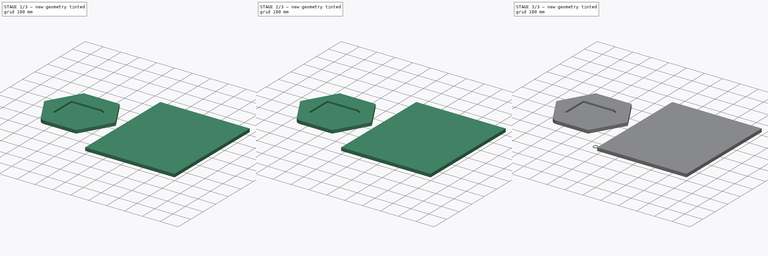
[diagram: build sequence overview — one tinted view per stage of 3, left to right]
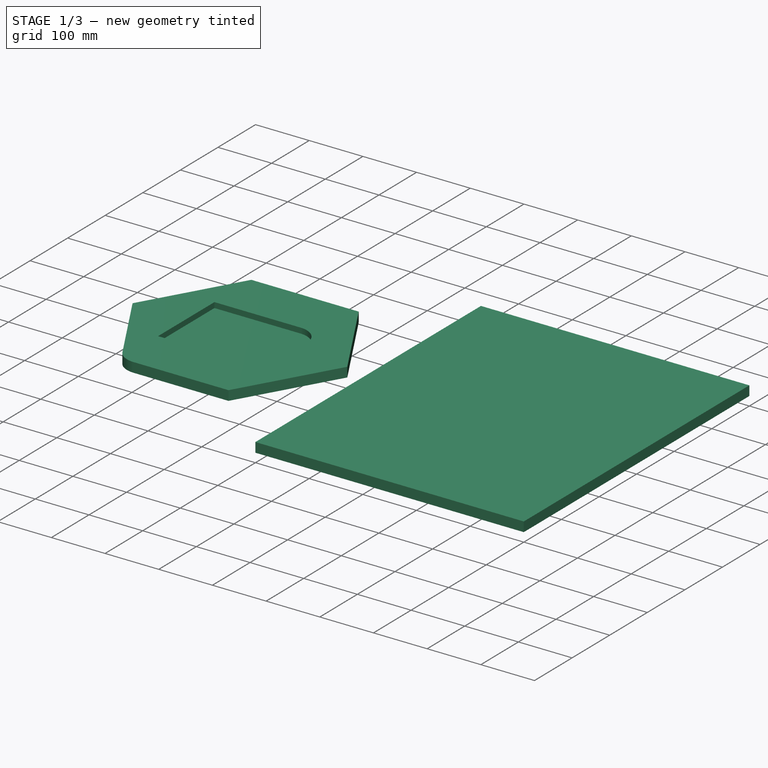
[diagram: stage 1 of 3 — iso view after this stage's code; geometry added in this stage tinted green]
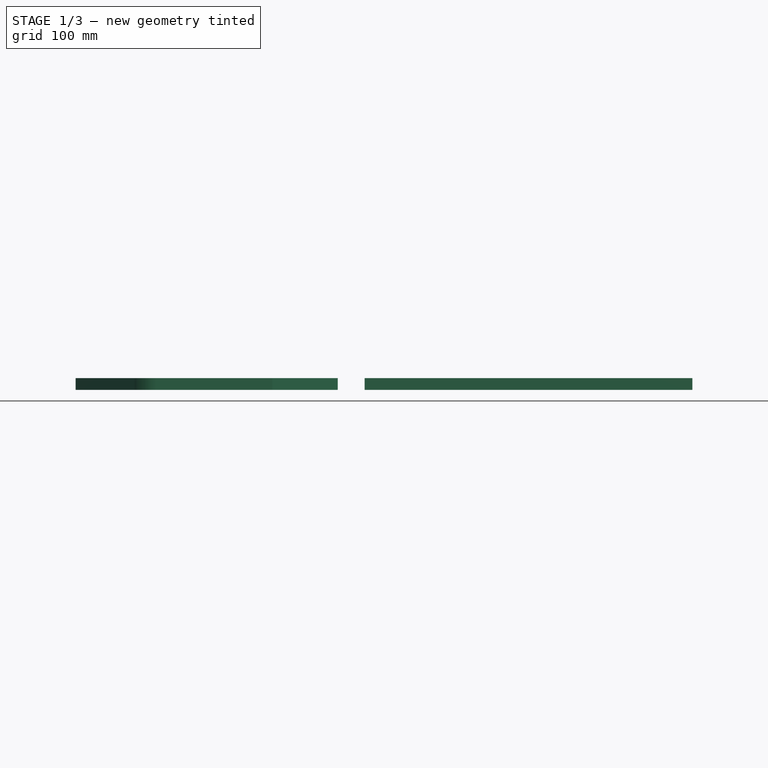
[diagram: stage 1 of 3 — front view after this stage's code; geometry added in this stage tinted green]
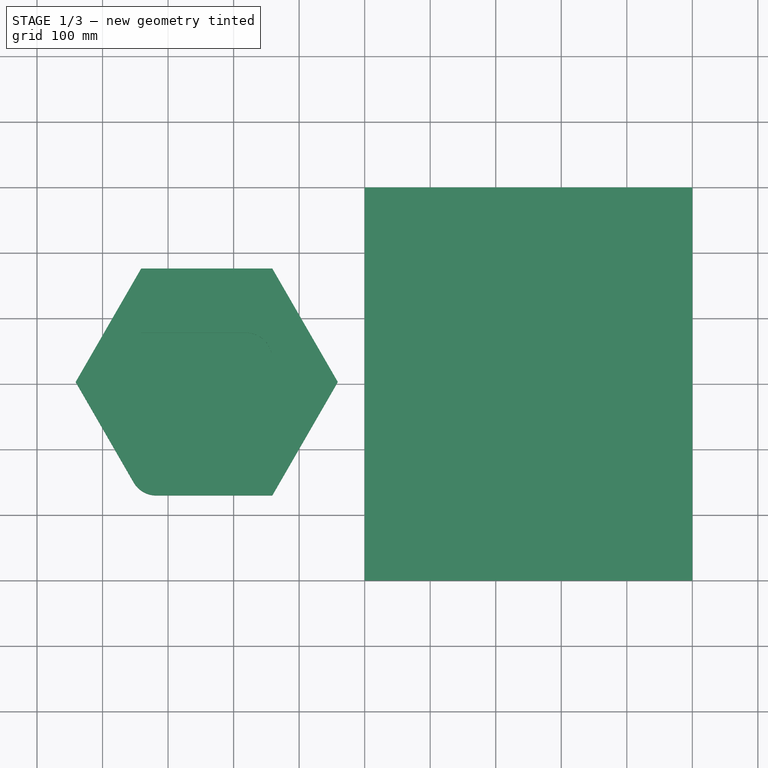
[diagram: stage 1 of 3 — top view after this stage's code; geometry added in this stage tinted green]
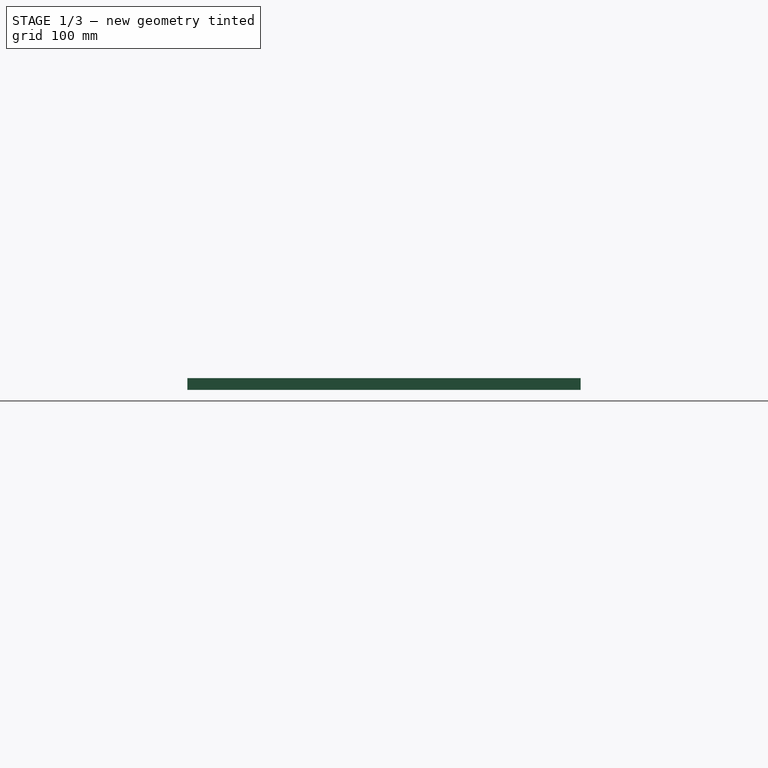
[diagram: stage 1 of 3 — right view after this stage's code; geometry added in this stage tinted green]
FCSTD DOCUMENT  (FreeCAD 0.18R16093 (Git))
Label: freecad-cnc-template
License: CreativeCommons Attribution-ShareAlike
LicenseURL: http://creativecommons.org/licenses/by-sa/4.0/
objects: Path::FeaturePython×17, Part::FeaturePython×4, Sketcher::SketchObject×2, PartDesign::Body×2, App::FeaturePython×2, Part::Feature×2, App::DocumentObjectGroup×2, Path::FeatureCompoundPython×2, Spreadsheet::Sheet×1, PartDesign::Pad×1
note: 14 computed .brp shape members not serialized (recipe doc carries the construction recipe); baked Part::Feature solids carry a one-line shape summary decoded from their .brp

FEATURE [Spreadsheet::Sheet] Spreadsheet  label="Material_setup"
  cells = B2=Material setup; B3=Material length (X); C3(matdim_x)=500; B4=Materlal width (Y); C4(matdim_y)=600; B5=Material thickness (Z); C5(matdim_z)=18; B6=Material type, or feedrate; C6(mattype)==wood; D6=type: foam, wood, plastic or alu; B9=Material position; B10=Offset X; C10(matoffset_x)=0; B11=Offset Y; C11(matoffset_y)=0; B13=Machine setup; B14=Bed width (X); C14(beddim_x)=2440; B15=Bed width (Y); C15(beddim_y)=1220; B16=Bed thickness (Y); C16(beddim_z)=30; B19=Material type; C19=Feedrates for 6mm bit; D19=Passdepth for 6mm bit; E19=Ramp angle; B20=Foam; C20(foam)=100; D20=18; E20=0; H20=bit; I20==Spreadsheet.mattype / 6 * 2 * 0.6; B21=Wood; C21(wood)=65; D21=16; E21=0; H21=stepdown; I21=Spreadsheet.passdepth / 6 * OpToolDiameter; B22=Plastic; C22(plastic)=30; D22=7; E22=72; H22=ramp angle; I22==Spreadsheet.rampangle; B23=Aluminium; C23(alu)=20; D23=1.8; E23=78; B24=Custom; D24=0.5; E24=45; B26=Current pass depth (dont change, only for reference); C26(passdepth)==C6 == C20 ? D20 : (C6 == C21 ? D21 : (C6 == C22 ? D22 : (C6 == C23 ? D23 : D24))); B27=Current ramp angle (dont change, only for reference); C27(rampangle)==C6 == C20 ? E20 : (C6 == C21 ? E21 : (C6 == C22 ? E22 : (C6 == C23 ? E23 : E24)))
FEATURE [Sketcher::SketchObject] Sketch
  MapMode = 5
  Support = -> [XY_Plane]
  expr: Constraints[10] = Material_setup.beddim_y
  expr: Constraints[9] = Material_setup.beddim_x
  sketch-geometry (4):
    g0: LineSegment StartX=0 StartY=0 StartZ=0 EndX=2440 EndY=0 EndZ=0
    g1: LineSegment StartX=2440 StartY=0 StartZ=0 EndX=2440 EndY=1220 EndZ=0
    g2: LineSegment StartX=2440 StartY=1220 StartZ=0 EndX=0 EndY=1220 EndZ=0
    g3: LineSegment StartX=0 StartY=1220 StartZ=0 EndX=0 EndY=0 EndZ=0
  constraints (11):
    c: Coincident(g0,g1)
    c: Coincident(g1,g2)
    c: Coincident(g2,g3)
    c: Coincident(g3,g0)
    c: Horizontal(g0)
    c: Horizontal(g2)
    c: Vertical(g1)
    c: Vertical(g3)
    c: Coincident(g0,g-1)
    c: DistanceX(g0,g0) = 2440
    c: DistanceY(g3,g3) = 1220
FEATURE [PartDesign::Body] Body  label="Machine_bed_reference"
  Group = -> [Sketch]
  Origin = -> Origin
FEATURE [Sketcher::SketchObject] Sketch001
  MapMode = 5
  Support = -> [XY_Plane001]
  expr: Constraints[11] = Spreadsheet.matdim_y
  expr: Constraints[10] = Spreadsheet.matdim_x
  expr: Constraints[9] = Spreadsheet.matoffset_y
  expr: Constraints[8] = Spreadsheet.matoffset_x
  sketch-geometry (4):
    g0: LineSegment StartX=0 StartY=0 StartZ=0 EndX=500 EndY=0 EndZ=0
    g1: LineSegment StartX=500 StartY=0 StartZ=0 EndX=500 EndY=600 EndZ=0
    g2: LineSegment StartX=500 StartY=600 StartZ=0 EndX=0 EndY=600 EndZ=0
    g3: LineSegment StartX=0 StartY=600 StartZ=0 EndX=0 EndY=0 EndZ=0
  constraints (12):
    c: Coincident(g0,g1)
    c: Coincident(g1,g2)
    c: Coincident(g2,g3)
    c: Coincident(g3,g0)
    c: Horizontal(g0)
    c: Horizontal(g2)
    c: Vertical(g1)
    c: Vertical(g3)
    c: DistanceX(g-1,g0) = 0
    c: DistanceY(g-1,g0) = 0
    c: DistanceX(g0,g0) = 500
    c: DistanceY(g1,g1) = 600
FEATURE [PartDesign::Pad] Pad001
  Length = 18
  Length2 = 100
  Profile = -> Sketch001
  Type = 0
  expr: Length = Spreadsheet.matdim_z
FEATURE [Part::Feature] hextest_001001  label="hextest_002"
  Placement = pos=(-241,303,0) rot=(0,0,1;0rad)
  shape: bbox 400 x 346.4 x 18 mm, 15 faces (baked)
FEATURE [Part::FeaturePython] Clone  label="Model-hextest_002"  # Draft clone (typed FeaturePython)
  AttacherType = Attacher::AttachEngine3D
  Fuse = false
  Objects = -> [hextest_001001]
  PathResource = Model
  Placement = pos=(-241,303,0) rot=(0,0,1;0rad)
  Scale = (1,1,1)
FEATURE [App::DocumentObjectGroup] Model
  Group = -> [Clone]
FEATURE [Path::FeaturePython] Pocket_Shape  # Path/CAM operation (typed FeaturePython)
  Active = true
  AreaParams:
    OpenMode = 0
    Angle = 45.0
    MinArcPoints = 4
    Coplanar = 0
    Tolerance = 1e-07
    CleanDistance = 0.0
    PocketExtraOffset = 0.0
    RoundPrecision = 0.0
    AngleShift = 0.0
    SubjectFill = 0
    PocketMode = 2
    PocketLastStepover = 0.0
    Simplify = False
    SectionTolerance = 1e-06
    MaxArcPoints = 100
    Offset = 0.0
    Accuracy = 0.01
    LastStepover = 0.0
    PocketStepover = 4.800000000000001
    ClipFill = 0
    ToolRadius = 3.0
    Outline = False
    ClipperScale = 10000000.0
    FromCenter = True
    Explode = False
    EndType = 0
    Shift = 0.0
    ExtraPass = 0
    Project = False
    JoinType = 0
    Thicken = False
    Stepdown = 1.0
    SectionMode = 2
    MiterLimit = 2.0
    Deflection = 0.01
    Reorient = True
    FitArcs = True
    SectionCount = -1
    SectionOffset = 0.0
    Stepover = 0.0
    Unit = 1.0
    Fill = 0
  Base = -> [Clone]
  ClearanceHeight = 23
  CutMode = 1
  ExtraOffset = 0
  FinalDepth = 8
  FinishDepth = 0
  KeepToolDown = true
  MinTravel = false
  OffsetPattern = 1
  OpFinalDepth = 8
  OpStartDepth = 18
  OpStockZMax = 18
  OpStockZMin = 0
  OpToolDiameter = 6
  PathParams = {'resume_height': 21.0, 'feedrate': 65.0, 'verbose': True, 'orientation': 0, 'return_end': True, 'threshold': 6.003, 'preamble': False, 'retraction': 23.0, 'feedrate_v': 39.0}
  SafeHeight = 21
  StartAt = 0
  StartDepth = 18
  StartPoint = (0,0,0)
  StepDown = 16
  StepOver = 80
  ToolController = -> T4__6mm_milling_bit001001
  UseOutline = false
  UseStartPoint = false
  ZigZagAngle = 45
  expr: ClearanceHeight = OpStockZMax + SetupSheet.ClearanceHeightOffset
  expr: SafeHeight = OpStockZMax + SetupSheet.SafeHeightOffset
  expr: StepDown = Spreadsheet.passdepth / 6 * OpToolDiameter
  expr: FinalDepth = OpFinalDepth
  expr: StartDepth = OpStartDepth
FEATURE [Path::FeaturePython] Contour  # Path/CAM operation (typed FeaturePython)
  Active = true
  AreaParams:
    OpenMode = 0
    Angle = 45.0
    MinArcPoints = 4
    Coplanar = 2
    Tolerance = 1e-07
    CleanDistance = 0.0
    PocketExtraOffset = 0.0
    RoundPrecision = 0.0
    AngleShift = 0.0
    SubjectFill = 0
    PocketMode = 0
    PocketLastStepover = 0.0
    Simplify = False
    SectionTolerance = 1e-06
    MaxArcPoints = 100
    Offset = 3.0
    Accuracy = 0.01
    LastStepover = 0.0
    PocketStepover = 0.0
    ClipFill = 0
    ToolRadius = 1.0
    Outline = False
    ClipperScale = 10000000.0
    FromCenter = False
    Explode = False
    EndType = 0
    Shift = 0.0
    ExtraPass = 0
    Project = False
    JoinType = 0
    Thicken = False
    Stepdown = 1.0
    SectionMode = 2
    MiterLimit = 2.0
    Deflection = 0.01
    Reorient = True
    FitArcs = True
    SectionCount = -1
    SectionOffset = 0.0
    Stepover = 0.0
    Unit = 1.0
    Fill = 0
  ClearanceHeight = 23
  Direction = 0
  FinalDepth = 0.6
  JoinType = 0
  MiterLimit = 0.1
  OffsetExtra = 0
  OpFinalDepth = 0
  OpStartDepth = 18
  OpStockZMax = 18
  OpStockZMin = 0
  OpToolDiameter = 6
  PathParams = {'resume_height': 21.0, 'feedrate': 65.0, 'verbose': True, 'orientation': 1, 'return_end': True, 'preamble': False, 'retraction': 23.0, 'feedrate_v': 39.0}
  SafeHeight = 21
  Side = 0
  StartDepth = 18
  StartPoint = (0,0,0)
  StepDown = 16
  ToolController = -> T4__6mm_milling_bit001001
  UseComp = true
  UseStartPoint = false
  expr: ClearanceHeight = OpStockZMax + SetupSheet.ClearanceHeightOffset
  expr: SafeHeight = OpStockZMax + SetupSheet.SafeHeightOffset
  expr: StepDown = Spreadsheet.passdepth / 6 * OpToolDiameter
  expr: FinalDepth = OpFinalDepth + 0.6mm
  expr: StartDepth = OpStartDepth
FEATURE [Path::FeaturePython] RampEntryDressup  label="RampEntryDressup-pocket"  # Path/CAM operation (typed FeaturePython)
  Angle = 0.1
  Base = -> Pocket_Shape
  CustomFeedRate = 0
  DressupStartDepth = 25
  Method = 0
  RampFeedRate = 0
  UseStartDepth = false
  expr: Angle = Material_setup.rampangle
FEATURE [Path::FeaturePython] RampEntryDressup001  label="RampEntryDressup-contour"  # Path/CAM operation (typed FeaturePython)
  Angle = 0.1
  Base = -> Contour
  CustomFeedRate = 0
  DressupStartDepth = 25
  Method = 0
  RampFeedRate = 0
  UseStartDepth = false
  expr: Angle = Material_setup.rampangle
FEATURE [Path::FeatureCompoundPython] Operations  # Path/CAM operation (typed FeaturePython)
  Group = -> [RampEntryDressup,RampEntryDressup001]
  UsePlacements = false
FEATURE [Path::FeaturePython] Job  label="Pockets_and_contours"  # Path/CAM operation (typed FeaturePython)
  GeometryTolerance = 0.01
  Model = -> Model
  Operations = -> Operations
  PostProcessor = 4
  SetupSheet = -> SetupSheet
  Stock = -> Clone014
  ToolController = -> [T1__2mm_milling_bit001001,T2__3mm_milling_bit001001,T3__4mm_milling_bit001001,T4__6mm_milling_bit001001,T5__8mm_milling_bit001001]
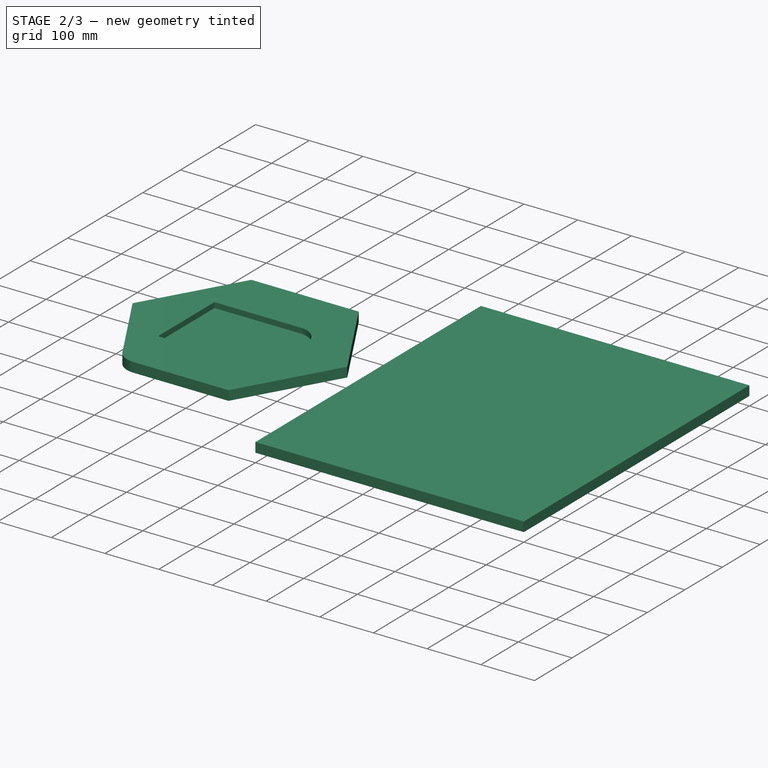
[diagram: stage 2 of 3 — iso view after this stage's code; geometry added in this stage tinted green]
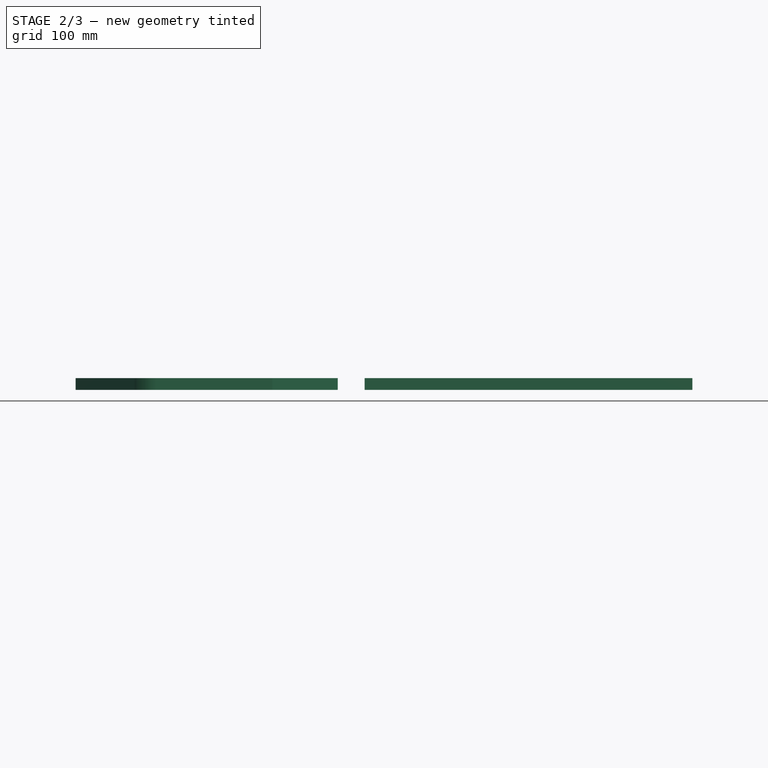
[diagram: stage 2 of 3 — front view after this stage's code; geometry added in this stage tinted green]
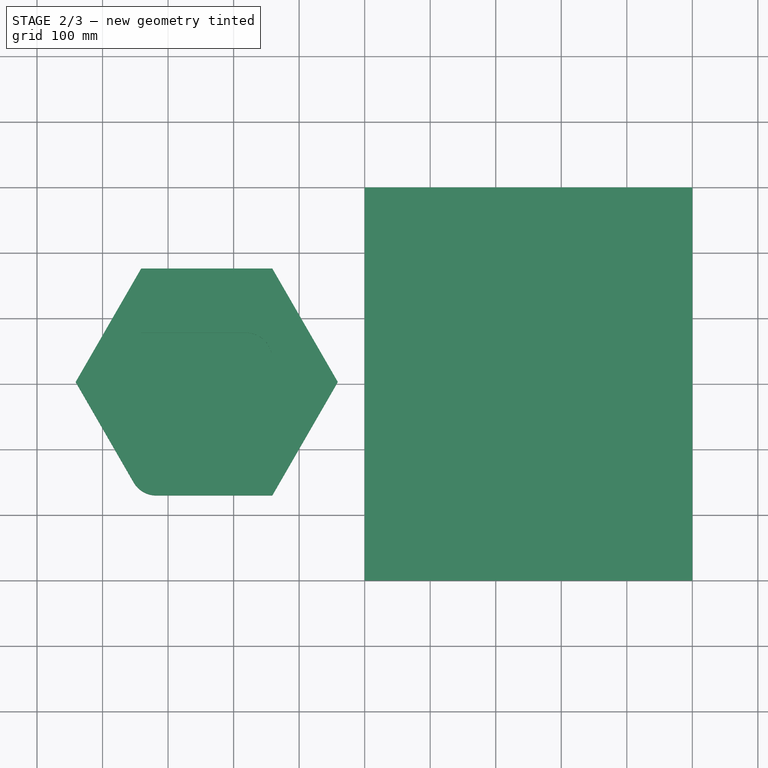
[diagram: stage 2 of 3 — top view after this stage's code; geometry added in this stage tinted green]
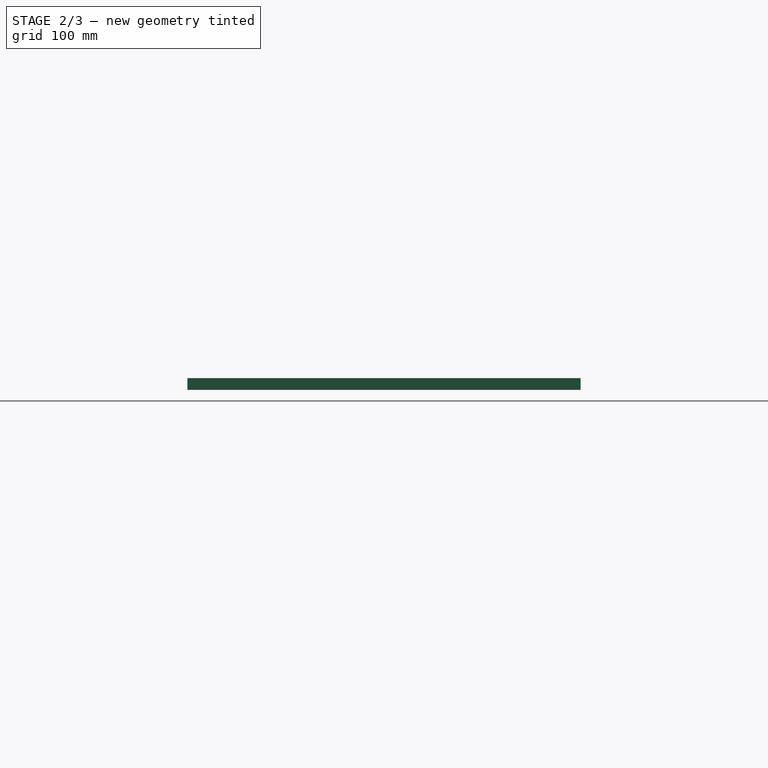
[diagram: stage 2 of 3 — right view after this stage's code; geometry added in this stage tinted green]
FEATURE [App::DocumentObjectGroup] Model001
  Group = -> [Clone013]
FEATURE [Path::FeaturePython] Drilling  # Path/CAM operation (typed FeaturePython)
  Active = true
  AddTipLength = false
  Base = -> [Clone013]
  ClearanceHeight = 23
  DwellEnabled = false
  DwellTime = 0
  FinalDepth = 0
  OpFinalDepth = 0
  OpStartDepth = 18
  OpStockZMax = 18
  OpStockZMin = 0
  OpToolDiameter = 6
  PeckDepth = 0
  PeckEnabled = false
  RetractHeight = 10
  ReturnLevel = 0
  SafeHeight = 21
  StartDepth = 18.6
  ToolController = -> T4__6mm_milling_bit001
  expr: ClearanceHeight = OpStockZMax + SetupSheet001.ClearanceHeightOffset
  expr: SafeHeight = OpStockZMax + SetupSheet001.SafeHeightOffset
  expr: FinalDepth = OpFinalDepth
  expr: StartDepth = OpStartDepth + 0.6mm
FEATURE [Path::FeatureCompoundPython] Operations001  # Path/CAM operation (typed FeaturePython)
  Group = -> [Drilling]
  UsePlacements = false
FEATURE [Path::FeaturePython] Job001  label="Hold_down_drill"  # Path/CAM operation (typed FeaturePython)
  GeometryTolerance = 0.01
  Model = -> Model001
  Operations = -> Operations001
  PostProcessor = 4
  SetupSheet = -> SetupSheet001
  Stock = -> Clone012
  ToolController = -> [T1__2mm_milling_bit001,T2__3mm_milling_bit001,T3__4mm_milling_bit001,T4__6mm_milling_bit001,T5__8mm_milling_bit001]
FEATURE [App::FeaturePython] SetupSheet  # Path/CAM operation (typed FeaturePython)
  ClearanceHeightExpression = OpStockZMax+SetupSheet.ClearanceHeightOffset
  ClearanceHeightOffset = 5
  FinalDepthExpression = OpFinalDepth
  HorizRapid = 250
  SafeHeightExpression = OpStockZMax+SetupSheet.SafeHeightOffset
  SafeHeightOffset = 3
  StartDepthExpression = OpStartDepth
  StepDownExpression = Spreadsheet.passdepth / 6 * OpToolDiameter
  VertRapid = 60
FEATURE [Path::FeaturePython] T1__2mm_milling_bit001001  label="T1: 2mm milling bit002"  # Path/CAM operation (typed FeaturePython)
  HorizFeed = 21.6667
  HorizRapid = 250
  SpindleDir = 0
  SpindleSpeed = 18000
  ToolNumber = 1
  VertFeed = 13
  VertRapid = 60
  expr: VertRapid = SetupSheet.VertRapid
  expr: HorizRapid = SetupSheet.HorizRapid
  expr: HorizFeed = Spreadsheet.mattype / 6 * 2
  expr: VertFeed = Spreadsheet.mattype / 6 * 2 * 0.6
FEATURE [Path::FeaturePython] T2__3mm_milling_bit001001  label="T2: 3mm milling bit002"  # Path/CAM operation (typed FeaturePython)
  HorizFeed = 32.5
  HorizRapid = 250
  SpindleDir = 0
  SpindleSpeed = 18000
  ToolNumber = 2
  VertFeed = 19.5
  VertRapid = 60
  expr: VertRapid = SetupSheet.VertRapid
  expr: HorizRapid = SetupSheet.HorizRapid
  expr: HorizFeed = Spreadsheet.mattype / 6 * 3
  expr: VertFeed = Spreadsheet.mattype / 6 * 3 * 0.6
FEATURE [Path::FeaturePython] T3__4mm_milling_bit001001  label="T3: 4mm milling bit002"  # Path/CAM operation (typed FeaturePython)
  HorizFeed = 43.3333
  HorizRapid = 250
  SpindleDir = 0
  SpindleSpeed = 18000
  ToolNumber = 3
  VertFeed = 26
  VertRapid = 60
  expr: VertRapid = SetupSheet.VertRapid
  expr: HorizRapid = SetupSheet.HorizRapid
  expr: HorizFeed = Spreadsheet.mattype / 6 * 4
  expr: VertFeed = Spreadsheet.mattype / 6 * 4 * 0.6
FEATURE [Path::FeaturePython] T4__6mm_milling_bit001001  label="T4: 6mm milling bit002"  # Path/CAM operation (typed FeaturePython)
  HorizFeed = 65
  HorizRapid = 250
  SpindleDir = 0
  SpindleSpeed = 18000
  ToolNumber = 4
  VertFeed = 39
  VertRapid = 60
  expr: VertRapid = SetupSheet.VertRapid
  expr: HorizRapid = SetupSheet.HorizRapid
  expr: HorizFeed = Spreadsheet.mattype / 6 * 6
  expr: VertFeed = Spreadsheet.mattype / 6 * 6 * 0.6
FEATURE [Path::FeaturePython] T5__8mm_milling_bit001001  label="T5: 8mm milling bit002"  # Path/CAM operation (typed FeaturePython)
  HorizFeed = 86.6667
  HorizRapid = 250
  SpindleDir = 0
  SpindleSpeed = 18000
  ToolNumber = 5
  VertFeed = 52
  VertRapid = 60
  expr: VertRapid = SetupSheet.VertRapid
  expr: HorizRapid = SetupSheet.HorizRapid
  expr: HorizFeed = Spreadsheet.mattype / 6 * 8
  expr: VertFeed = Spreadsheet.mattype / 6 * 8 * 0.6
FEATURE [Part::FeaturePython] Clone014  label="Stock-Material_reference"  # Draft clone (typed FeaturePython)
  AttacherType = Attacher::AttachEngine3D
  Fuse = false
  Objects = -> [Body001]
  PathResource = Stock
  Scale = (1,1,1)
  StockType = Unknown
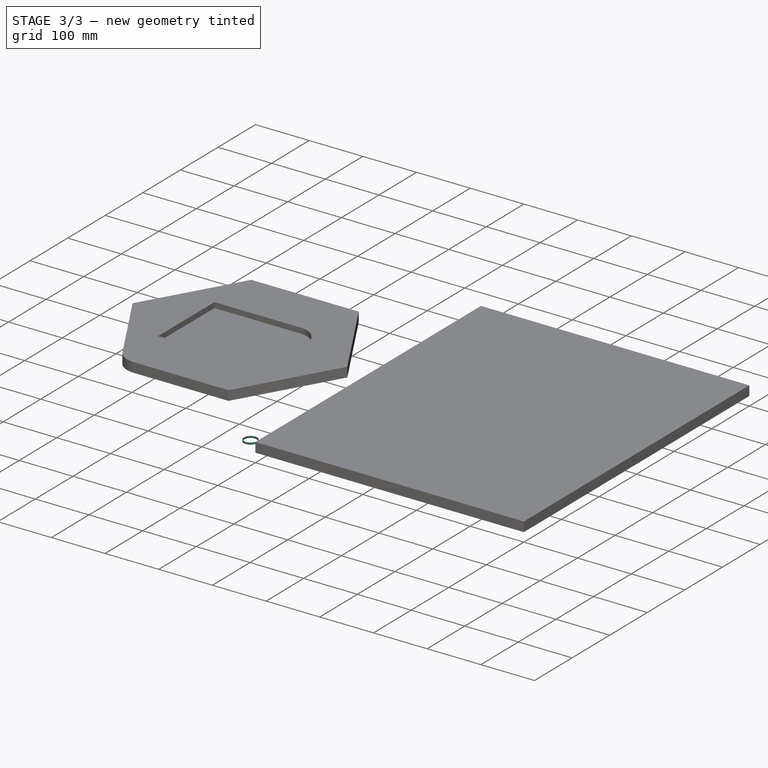
[diagram: stage 3 of 3 — iso view after this stage's code; geometry added in this stage tinted green]
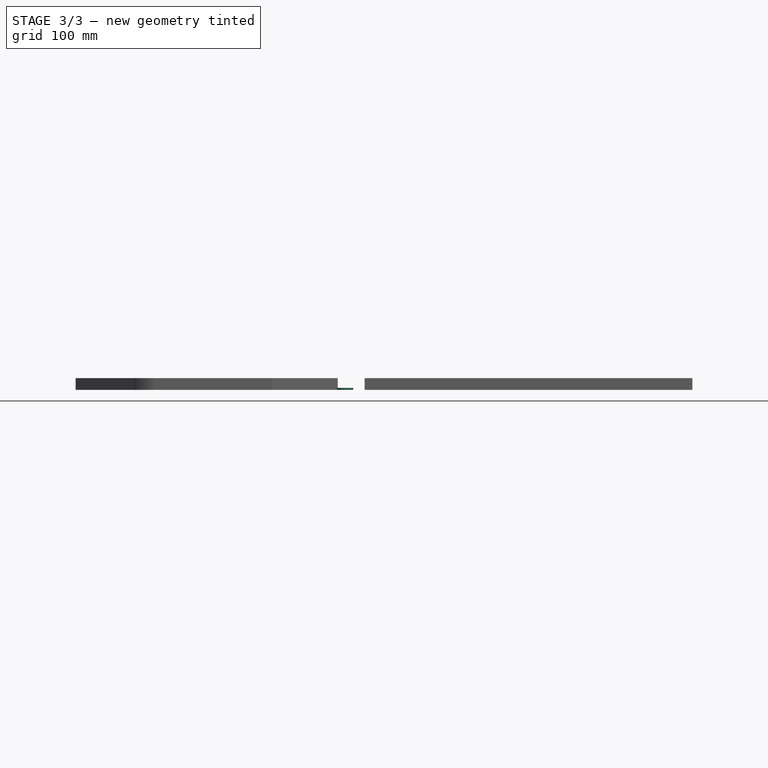
[diagram: stage 3 of 3 — front view after this stage's code; geometry added in this stage tinted green]
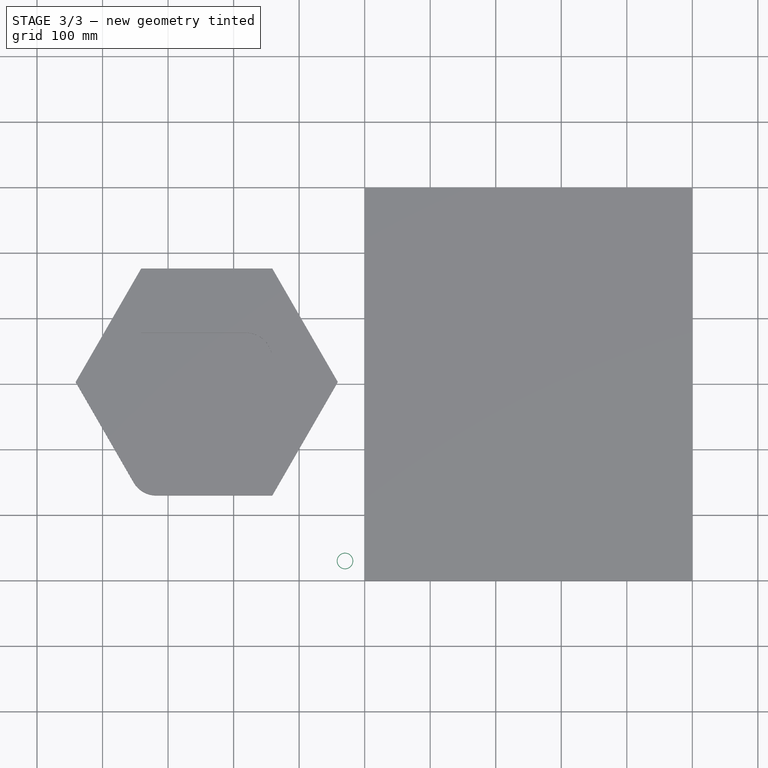
[diagram: stage 3 of 3 — top view after this stage's code; geometry added in this stage tinted green]
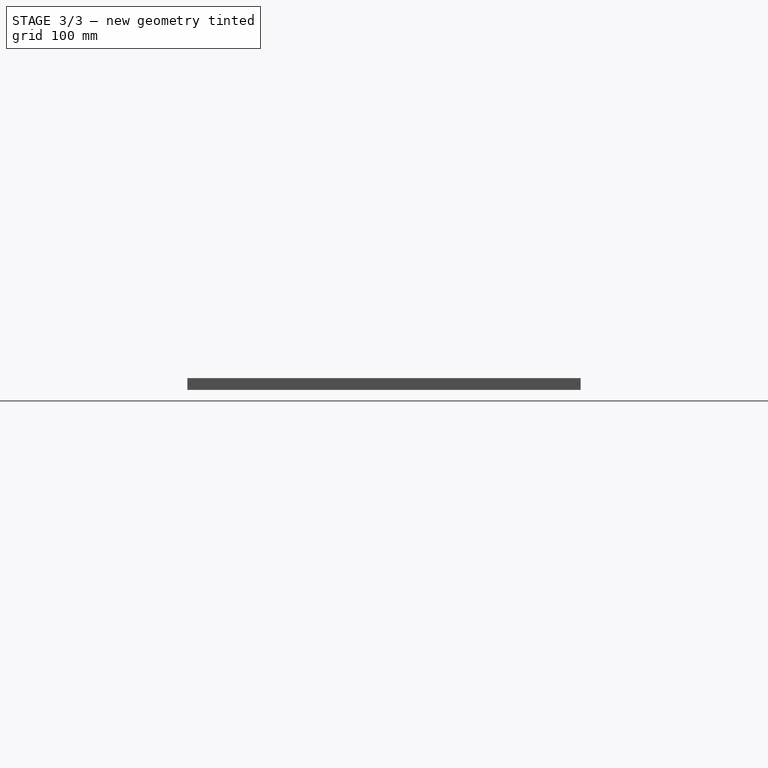
[diagram: stage 3 of 3 — right view after this stage's code; geometry added in this stage tinted green]
FEATURE [PartDesign::Body] Body001  label="Material_reference"
  Group = -> [Sketch001,Pad001]
  Origin = -> Origin001
  Tip = -> Pad001
FEATURE [App::FeaturePython] SetupSheet001  # Path/CAM operation (typed FeaturePython)
  ClearanceHeightExpression = OpStockZMax+SetupSheet001.ClearanceHeightOffset
  ClearanceHeightOffset = 5
  FinalDepthExpression = OpFinalDepth
  HorizRapid = 250
  SafeHeightExpression = OpStockZMax+SetupSheet001.SafeHeightOffset
  SafeHeightOffset = 3
  StartDepthExpression = OpStartDepth
  StepDownExpression = Spreadsheet.passdepth / 6 * OpToolDiameter
  VertRapid = 60
FEATURE [Part::FeaturePython] Clone012  label="Stock-Material_reference001"  # Draft clone (typed FeaturePython)
  AttacherType = Attacher::AttachEngine3D
  Fuse = false
  Objects = -> [Body001]
  PathResource = Stock
  Scale = (1,1,1)
  StockType = Unknown
FEATURE [Path::FeaturePython] T1__2mm_milling_bit001  label="T1: 2mm milling bit001"  # Path/CAM operation (typed FeaturePython)
  HorizFeed = 21.6667
  HorizRapid = 250
  SpindleDir = 0
  SpindleSpeed = 18000
  ToolNumber = 1
  VertFeed = 13
  VertRapid = 60
  expr: VertFeed = Spreadsheet.mattype / 6 * 2 * 0.6
  expr: HorizFeed = Spreadsheet.mattype / 6 * 2
  expr: HorizRapid = SetupSheet001.HorizRapid
  expr: VertRapid = SetupSheet001.VertRapid
FEATURE [Path::FeaturePython] T2__3mm_milling_bit001  label="T2: 3mm milling bit001"  # Path/CAM operation (typed FeaturePython)
  HorizFeed = 32.5
  HorizRapid = 250
  SpindleDir = 0
  SpindleSpeed = 18000
  ToolNumber = 2
  VertFeed = 19.5
  VertRapid = 60
  expr: VertFeed = Spreadsheet.mattype / 6 * 3 * 0.6
  expr: HorizFeed = Spreadsheet.mattype / 6 * 3
  expr: HorizRapid = SetupSheet001.HorizRapid
  expr: VertRapid = SetupSheet001.VertRapid
FEATURE [Path::FeaturePython] T3__4mm_milling_bit001  label="T3: 4mm milling bit001"  # Path/CAM operation (typed FeaturePython)
  HorizFeed = 43.3333
  HorizRapid = 250
  SpindleDir = 0
  SpindleSpeed = 18000
  ToolNumber = 3
  VertFeed = 26
  VertRapid = 60
  expr: VertFeed = Spreadsheet.mattype / 6 * 4 * 0.6
  expr: HorizFeed = Spreadsheet.mattype / 6 * 4
  expr: HorizRapid = SetupSheet001.HorizRapid
  expr: VertRapid = SetupSheet001.VertRapid
FEATURE [Path::FeaturePython] T4__6mm_milling_bit001  label="T4: 6mm milling bit001"  # Path/CAM operation (typed FeaturePython)
  HorizFeed = 65
  HorizRapid = 250
  SpindleDir = 0
  SpindleSpeed = 18000
  ToolNumber = 4
  VertFeed = 39
  VertRapid = 60
  expr: VertFeed = Spreadsheet.mattype / 6 * 6 * 0.6
  expr: HorizFeed = Spreadsheet.mattype / 6 * 6
  expr: HorizRapid = SetupSheet001.HorizRapid
  expr: VertRapid = SetupSheet001.VertRapid
FEATURE [Path::FeaturePython] T5__8mm_milling_bit001  label="T5: 8mm milling bit001"  # Path/CAM operation (typed FeaturePython)
  HorizFeed = 86.6667
  HorizRapid = 250
  SpindleDir = 0
  SpindleSpeed = 18000
  ToolNumber = 5
  VertFeed = 52
  VertRapid = 60
  expr: VertFeed = Spreadsheet.mattype / 6 * 8 * 0.6
  expr: HorizFeed = Spreadsheet.mattype / 6 * 8
  expr: HorizRapid = SetupSheet001.HorizRapid
  expr: VertRapid = SetupSheet001.VertRapid
FEATURE [Part::Feature] holddown_circle_001001  label="holddown_circle_002"
  Placement = pos=(-30,30,0) rot=(0,0,1;0rad)
  shape: bbox 25 x 25 x 3 mm, 4 faces (baked)
FEATURE [Part::FeaturePython] Clone013  label="Model-holddown_circle_005"  # Draft clone (typed FeaturePython)
  AttacherType = Attacher::AttachEngine3D
  Fuse = false
  Objects = -> [holddown_circle_001001]
  PathResource = Model
  Placement = pos=(-30,30,0) rot=(0,0,1;0rad)
  Scale = (1,1,1)
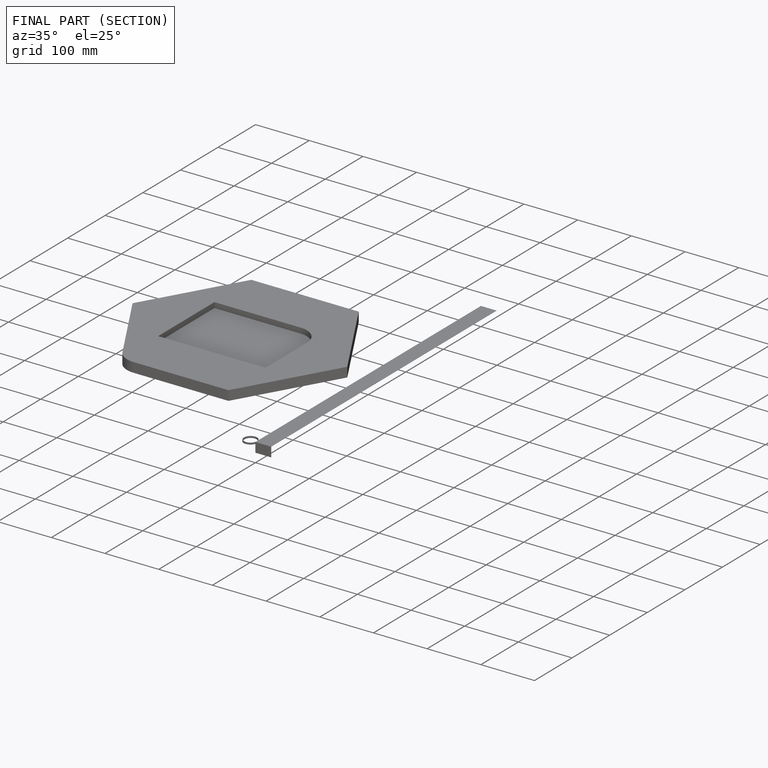
[diagram: finished part — half-section view (interior)]
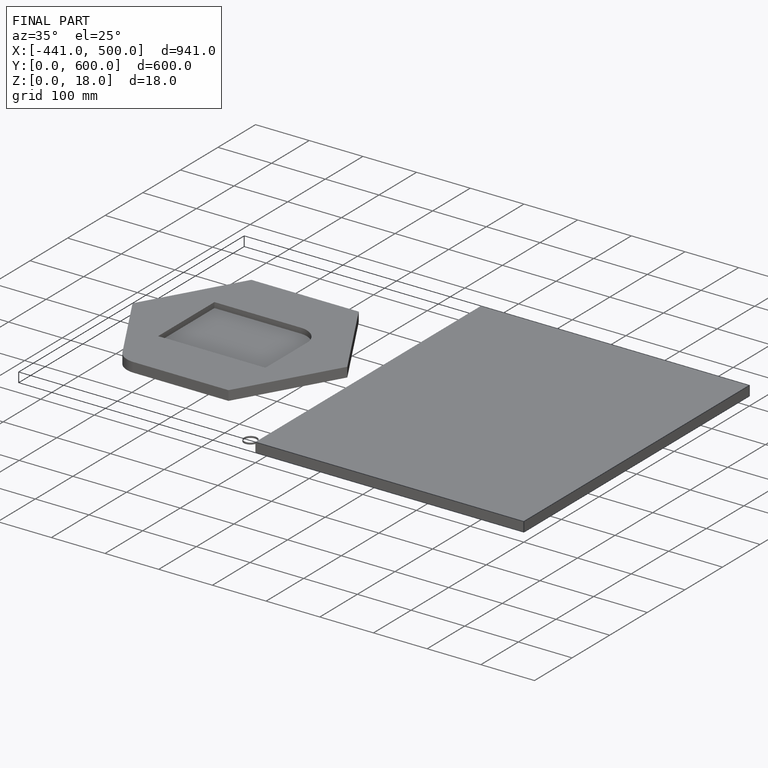
[diagram: finished part — iso view with bounding-box wireframe]
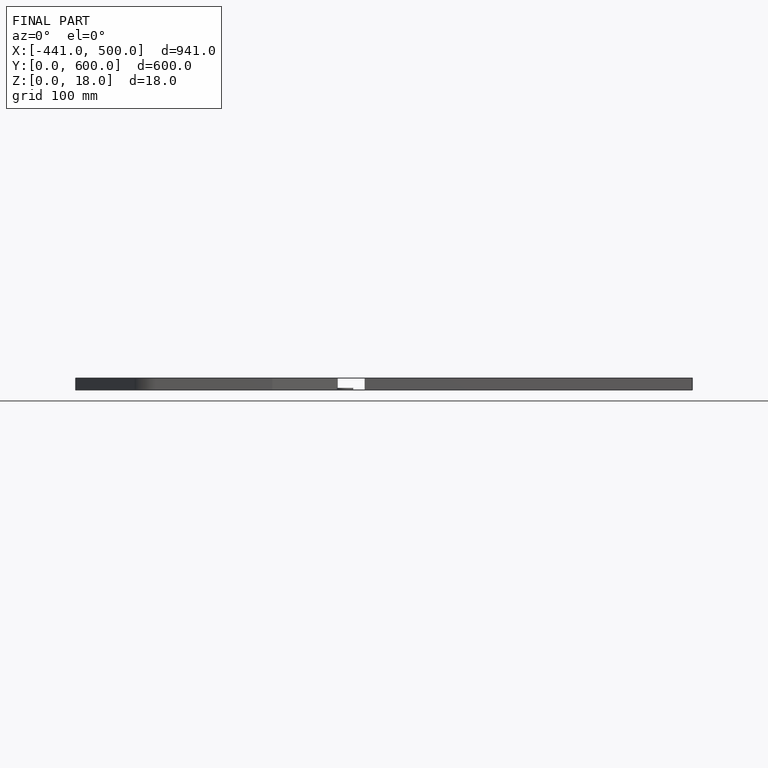
[diagram: finished part — front view with bounding-box wireframe]
